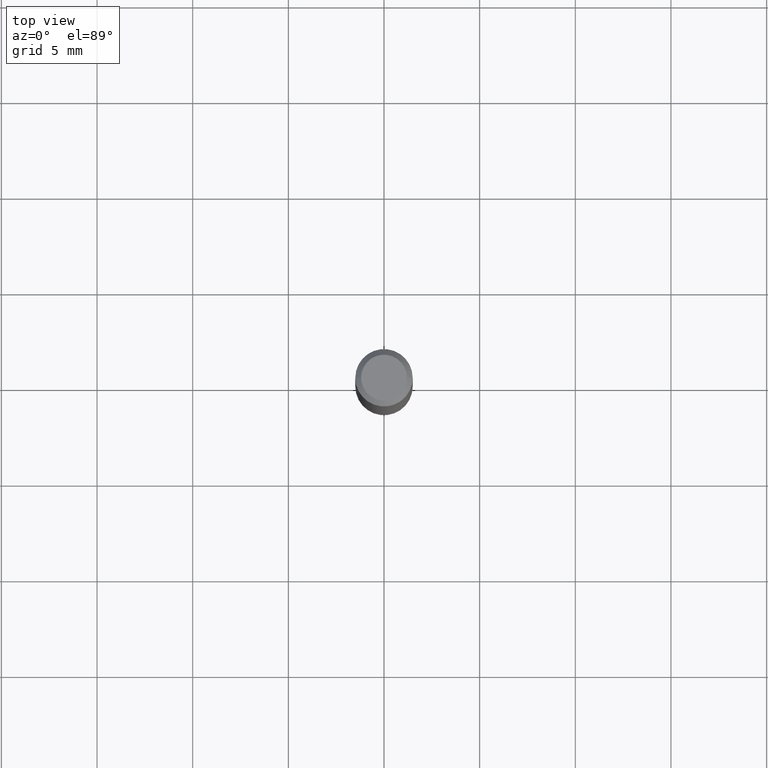
[diagram: clean part render]
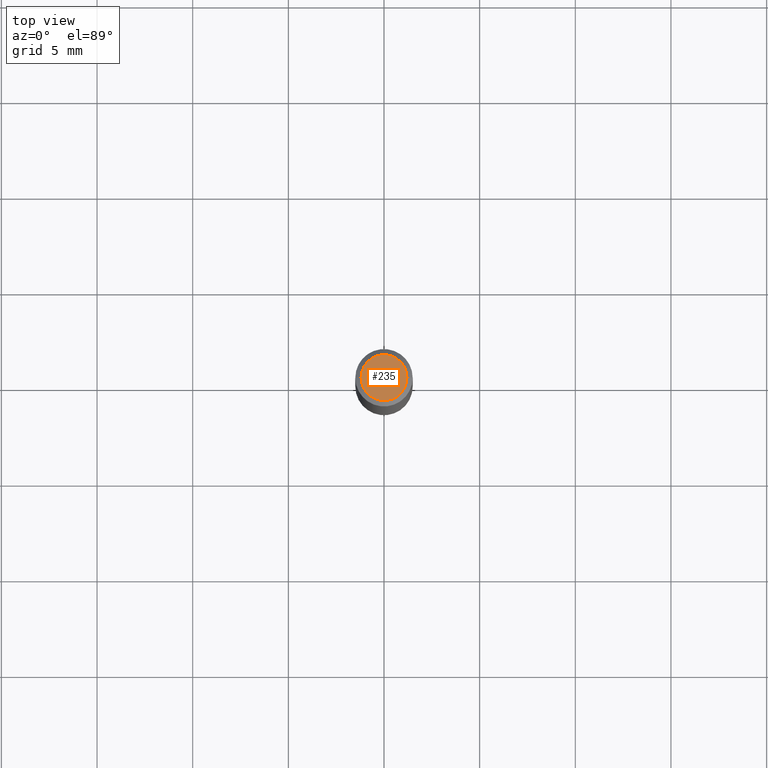
[diagram: same view with one face highlighted and labeled with its STEP entity id]
A machine part, top view. The second image highlights one B-rep face of the part: STEP entity #235.
In plain terms, the highlighted planar face has unit normal (0, -0, -1).
Its self-contained STEP definition (entity closure, byte-faithful):
#28 = VERTEX_POINT ( 'NONE', #294 ) ;
#55 = CIRCLE ( 'NONE', #63, 0.04724000000000000421 ) ;
#60 = DIRECTION ( 'NONE',  ( 1.000000000000000000, -6.982962677686266711E-15, 4.876185090822587894E-29 ) ) ;
#63 = AXIS2_PLACEMENT_3D ( 'NONE', #232, #384, #193 ) ;
#82 = DIRECTION ( 'NONE',  ( -1.000000000000000000, 6.982962677686265922E-15, -4.876176775795935793E-29 ) ) ;
#107 = ORIENTED_EDGE ( 'NONE', *, *, #256, .T. ) ;
#110 = AXIS2_PLACEMENT_3D ( 'NONE', #175, #290, #60 ) ;
#145 = CARTESIAN_POINT ( 'NONE',  ( -0.04724000000000000421, 3.504923541997677355E-16, -3.380025165670481712E-19 ) ) ;
#175 = CARTESIAN_POINT ( 'NONE',  ( 8.265746106709734507E-48, -1.180129479067563789E-33, -3.380025165646692144E-19 ) ) ;
#193 = DIRECTION ( 'NONE',  ( 1.000000000000000000, -6.982962677686266711E-15, 4.876185090822587894E-29 ) ) ;
#232 = CARTESIAN_POINT ( 'NONE',  ( 8.265746106709734507E-48, -1.180129479067563789E-33, -3.380025165646692144E-19 ) ) ;
#235 = ADVANCED_FACE ( 'NONE', ( #312 ), #272, .F. ) ;
#238 = CARTESIAN_POINT ( 'NONE',  ( 4.132873053354867254E-48, -5.900647395337818946E-34, -1.690012582823346072E-19 ) ) ;
#256 = EDGE_CURVE ( 'NONE', #28, #470, #55, .T. ) ;
#272 = PLANE ( 'NONE',  #275 ) ;
#275 = AXIS2_PLACEMENT_3D ( 'NONE', #238, #392, #82 ) ;
#286 = ORIENTED_EDGE ( 'NONE', *, *, #410, .T. ) ;
#290 = DIRECTION ( 'NONE',  ( -2.445468806185136597E-29, 3.491481338843145583E-15, 1.000000000000000000 ) ) ;
#294 = CARTESIAN_POINT ( 'NONE',  ( 0.04724000000000000421, -3.852183633974369345E-16, -3.380025165621689721E-19 ) ) ;
#312 = FACE_OUTER_BOUND ( 'NONE', #402, .T. ) ;
#384 = DIRECTION ( 'NONE',  ( -2.445468806185136597E-29, 3.491481338843145583E-15, 1.000000000000000000 ) ) ;
#392 = DIRECTION ( 'NONE',  ( 2.438088387897960049E-29, -3.491481338843145188E-15, -1.000000000000000000 ) ) ;
#402 = EDGE_LOOP ( 'NONE', ( #286, #107 ) ) ;
#407 = CIRCLE ( 'NONE', #110, 0.04724000000000000421 ) ;
#410 = EDGE_CURVE ( 'NONE', #470, #28, #407, .T. ) ;
#470 = VERTEX_POINT ( 'NONE', #145 ) ;